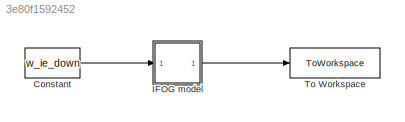
MODEL slx_3e80f1592452
KIND model
CONFIG AbsTol = auto
CONFIG EnableMultiTasking = off
CONFIG FixedStep = 1/(fs)
CONFIG MaxStep = auto
CONFIG MinStep = auto
CONFIG RelTol = 1e-3
CONFIG SampleTimeConstraint = Unconstrained
CONFIG SolverName = FixedStepAuto
CONFIG StartTime = 0.0
CONFIG StopTime = time
BLOCK [Constant] Constant
  Value = w_ie_down
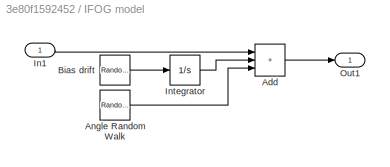
BLOCK [SubSystem] IFOG model
  Ports = [1, 1]
  RequestExecContextInheritance = off
BLOCK [Sum] IFOG model/Add
  IconShape = rectangular
  Inputs = +++
  Ports = [3, 1]
BLOCK [RandomNumber] IFOG model/Angle Random Walk
  NameLocation = left
  SampleTime = 1/fs
  Variance = arw_std^2
BLOCK [RandomNumber] IFOG model/Bias drift
  NameLocation = left
  SampleTime = 1/fs
  Variance = bias_in^2
BLOCK [Inport] IFOG model/In1
BLOCK [Integrator] IFOG model/Integrator
  Ports = [1, 1]
BLOCK [Outport] IFOG model/Out1
BLOCK [ToWorkspace] To Workspace
  FixptAsFi = on
  MaxDataPoints = inf
  Ports = [1]
  SampleTime = -1
  SaveFormat = Timeseries
  VariableName = ifog
LINE Constant:1 -> IFOG model:1
LINE IFOG model/Add:1 -> IFOG model/Out1:1
LINE IFOG model/Angle Random Walk:1 -> IFOG model/Add:3
LINE IFOG model/Bias drift:1 -> IFOG model/Integrator:1
LINE IFOG model/In1:1 -> IFOG model/Add:1
LINE IFOG model/Integrator:1 -> IFOG model/Add:2
LINE IFOG model:1 -> To Workspace:1
